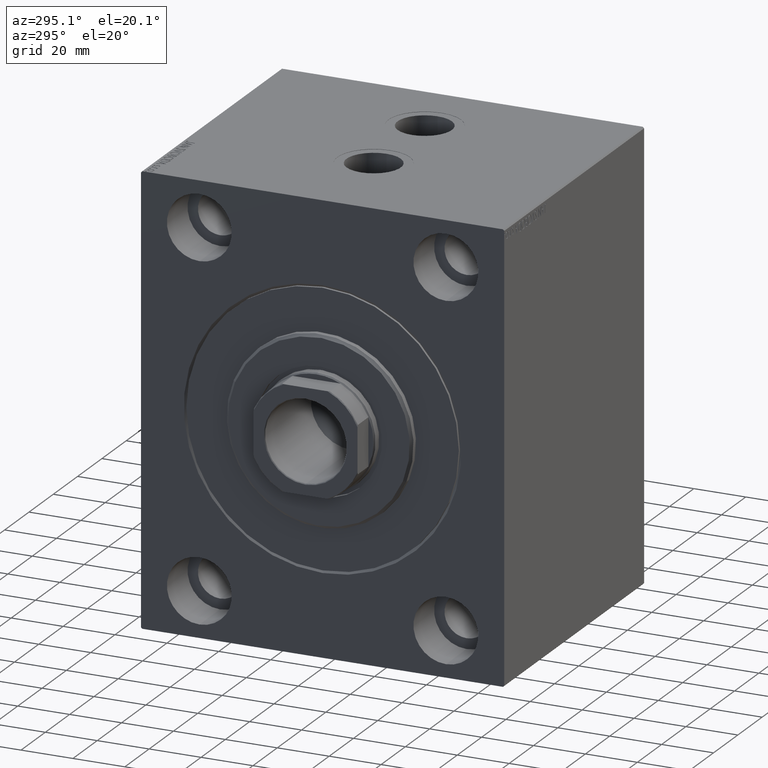
[diagram: clean part render]
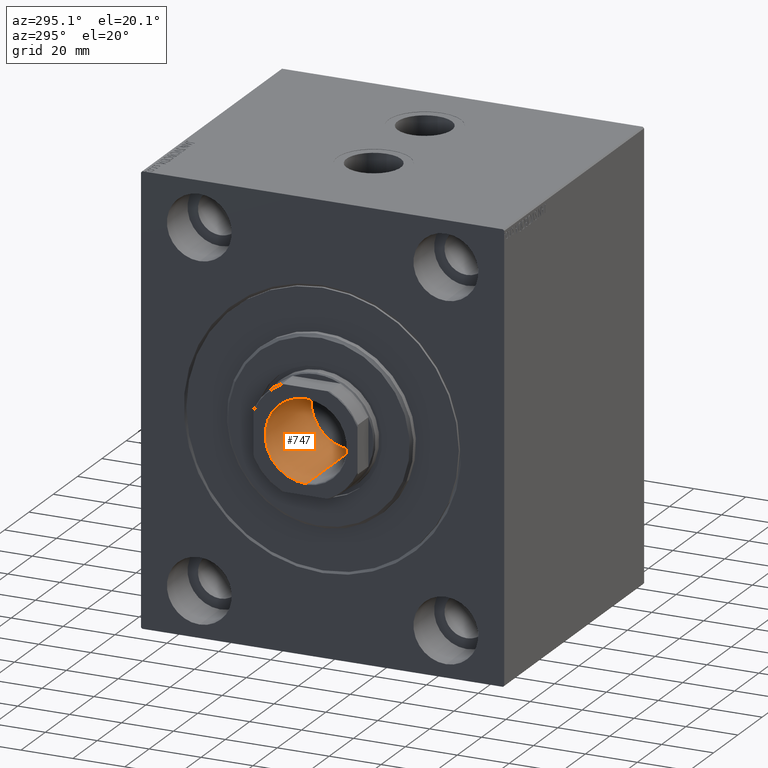
[diagram: same view with one face highlighted and labeled with its STEP entity id]
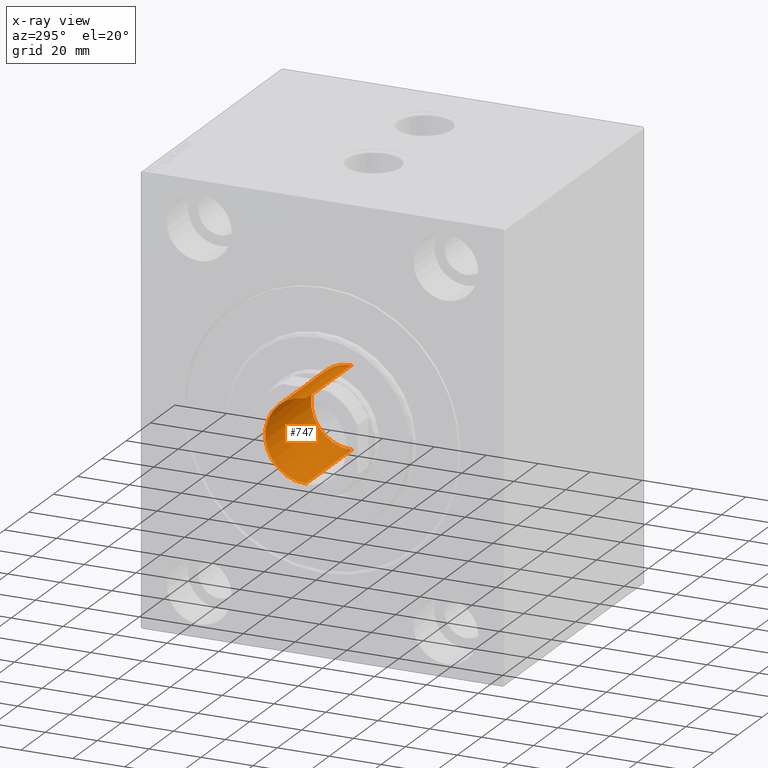
[diagram: x-ray of the same camera — body ghosted, the highlighted face saturated]
A machine part, auxiliary view. The second image highlights one B-rep face of the part: STEP entity #747.
The next image is the same camera in x-ray: the body ghosted, the highlighted face saturated — about 1% of this face is hidden behind the body in this view.
In plain terms, the highlighted cylindrical surface (partial cylindrical patch) has radius 15.75 mm, axis along (-1, 0, 0).
Its self-contained STEP definition (entity closure, byte-faithful):
#747 = ADVANCED_FACE ( 'NONE', ( #37255 ), #41005, .F. ) ;
#2026 = CIRCLE ( 'NONE', #14130, 15.74999999999999289 ) ;
#2588 = CIRCLE ( 'NONE', #42377, 15.74999999999999289 ) ;
#3092 = DIRECTION ( 'NONE',  ( -0.000000000000000000, -0.000000000000000000, 1.000000000000000000 ) ) ;
#3204 = CARTESIAN_POINT ( 'NONE',  ( -15.74999999999999289, 1.928818708657080556E-15, 64.70000000000000284 ) ) ;
#3999 = CARTESIAN_POINT ( 'NONE',  ( -15.74999999999999289, 1.928818708657080556E-15, 26.99999999999998934 ) ) ;
#4348 = DIRECTION ( 'NONE',  ( 1.000000000000000000, 0.000000000000000000, 0.000000000000000000 ) ) ;
#4857 = ORIENTED_EDGE ( 'NONE', *, *, #31761, .F. ) ;
#6233 = EDGE_LOOP ( 'NONE', ( #21272, #4857, #26366, #31834 ) ) ;
#6505 = VERTEX_POINT ( 'NONE', #3999 ) ;
#10304 = CARTESIAN_POINT ( 'NONE',  ( 15.74999999999999289, 0.000000000000000000, 26.99999999999998934 ) ) ;
#10537 = DIRECTION ( 'NONE',  ( -0.000000000000000000, -0.000000000000000000, 1.000000000000000000 ) ) ;
#12968 = CARTESIAN_POINT ( 'NONE',  ( 15.74999999999999289, 0.000000000000000000, 64.99999999999998579 ) ) ;
#13627 = VERTEX_POINT ( 'NONE', #26211 ) ;
#14130 = AXIS2_PLACEMENT_3D ( 'NONE', #28917, #18895, #42247 ) ;
#14254 = VECTOR ( 'NONE', #3092, 1000.000000000000000 ) ;
#16057 = VERTEX_POINT ( 'NONE', #10304 ) ;
#16307 = LINE ( 'NONE', #12968, #22422 ) ;
#18895 = DIRECTION ( 'NONE',  ( 0.000000000000000000, 0.000000000000000000, 1.000000000000000000 ) ) ;
#19476 = EDGE_CURVE ( 'NONE', #13627, #27001, #2026, .T. ) ;
#20553 = CARTESIAN_POINT ( 'NONE',  ( 0.000000000000000000, 0.000000000000000000, 64.99999999999998579 ) ) ;
#21272 = ORIENTED_EDGE ( 'NONE', *, *, #24345, .F. ) ;
#22422 = VECTOR ( 'NONE', #31607, 1000.000000000000000 ) ;
#23758 = DIRECTION ( 'NONE',  ( -0.000000000000000000, -0.000000000000000000, 1.000000000000000000 ) ) ;
#24345 = EDGE_CURVE ( 'NONE', #6505, #27001, #39577, .T. ) ;
#26211 = CARTESIAN_POINT ( 'NONE',  ( 15.74999999999999289, 0.000000000000000000, 64.70000000000000284 ) ) ;
#26366 = ORIENTED_EDGE ( 'NONE', *, *, #28264, .T. ) ;
#27001 = VERTEX_POINT ( 'NONE', #3204 ) ;
#27982 = AXIS2_PLACEMENT_3D ( 'NONE', #20553, #10537, #30129 ) ;
#28264 = EDGE_CURVE ( 'NONE', #16057, #13627, #16307, .T. ) ;
#28917 = CARTESIAN_POINT ( 'NONE',  ( 0.000000000000000000, 0.000000000000000000, 64.70000000000000284 ) ) ;
#30129 = DIRECTION ( 'NONE',  ( 1.000000000000000000, 0.000000000000000000, 0.000000000000000000 ) ) ;
#31275 = CARTESIAN_POINT ( 'NONE',  ( 0.000000000000000000, 0.000000000000000000, 26.99999999999998934 ) ) ;
#31607 = DIRECTION ( 'NONE',  ( -0.000000000000000000, -0.000000000000000000, 1.000000000000000000 ) ) ;
#31761 = EDGE_CURVE ( 'NONE', #16057, #6505, #2588, .T. ) ;
#31834 = ORIENTED_EDGE ( 'NONE', *, *, #19476, .T. ) ;
#37255 = FACE_OUTER_BOUND ( 'NONE', #6233, .T. ) ;
#39577 = LINE ( 'NONE', #44040, #14254 ) ;
#41005 = CYLINDRICAL_SURFACE ( 'NONE', #27982, 15.74999999999999289 ) ;
#42247 = DIRECTION ( 'NONE',  ( 1.000000000000000000, 0.000000000000000000, 0.000000000000000000 ) ) ;
#42377 = AXIS2_PLACEMENT_3D ( 'NONE', #31275, #23758, #4348 ) ;
#44040 = CARTESIAN_POINT ( 'NONE',  ( -15.74999999999999289, 1.928818708657080556E-15, 64.99999999999998579 ) ) ;